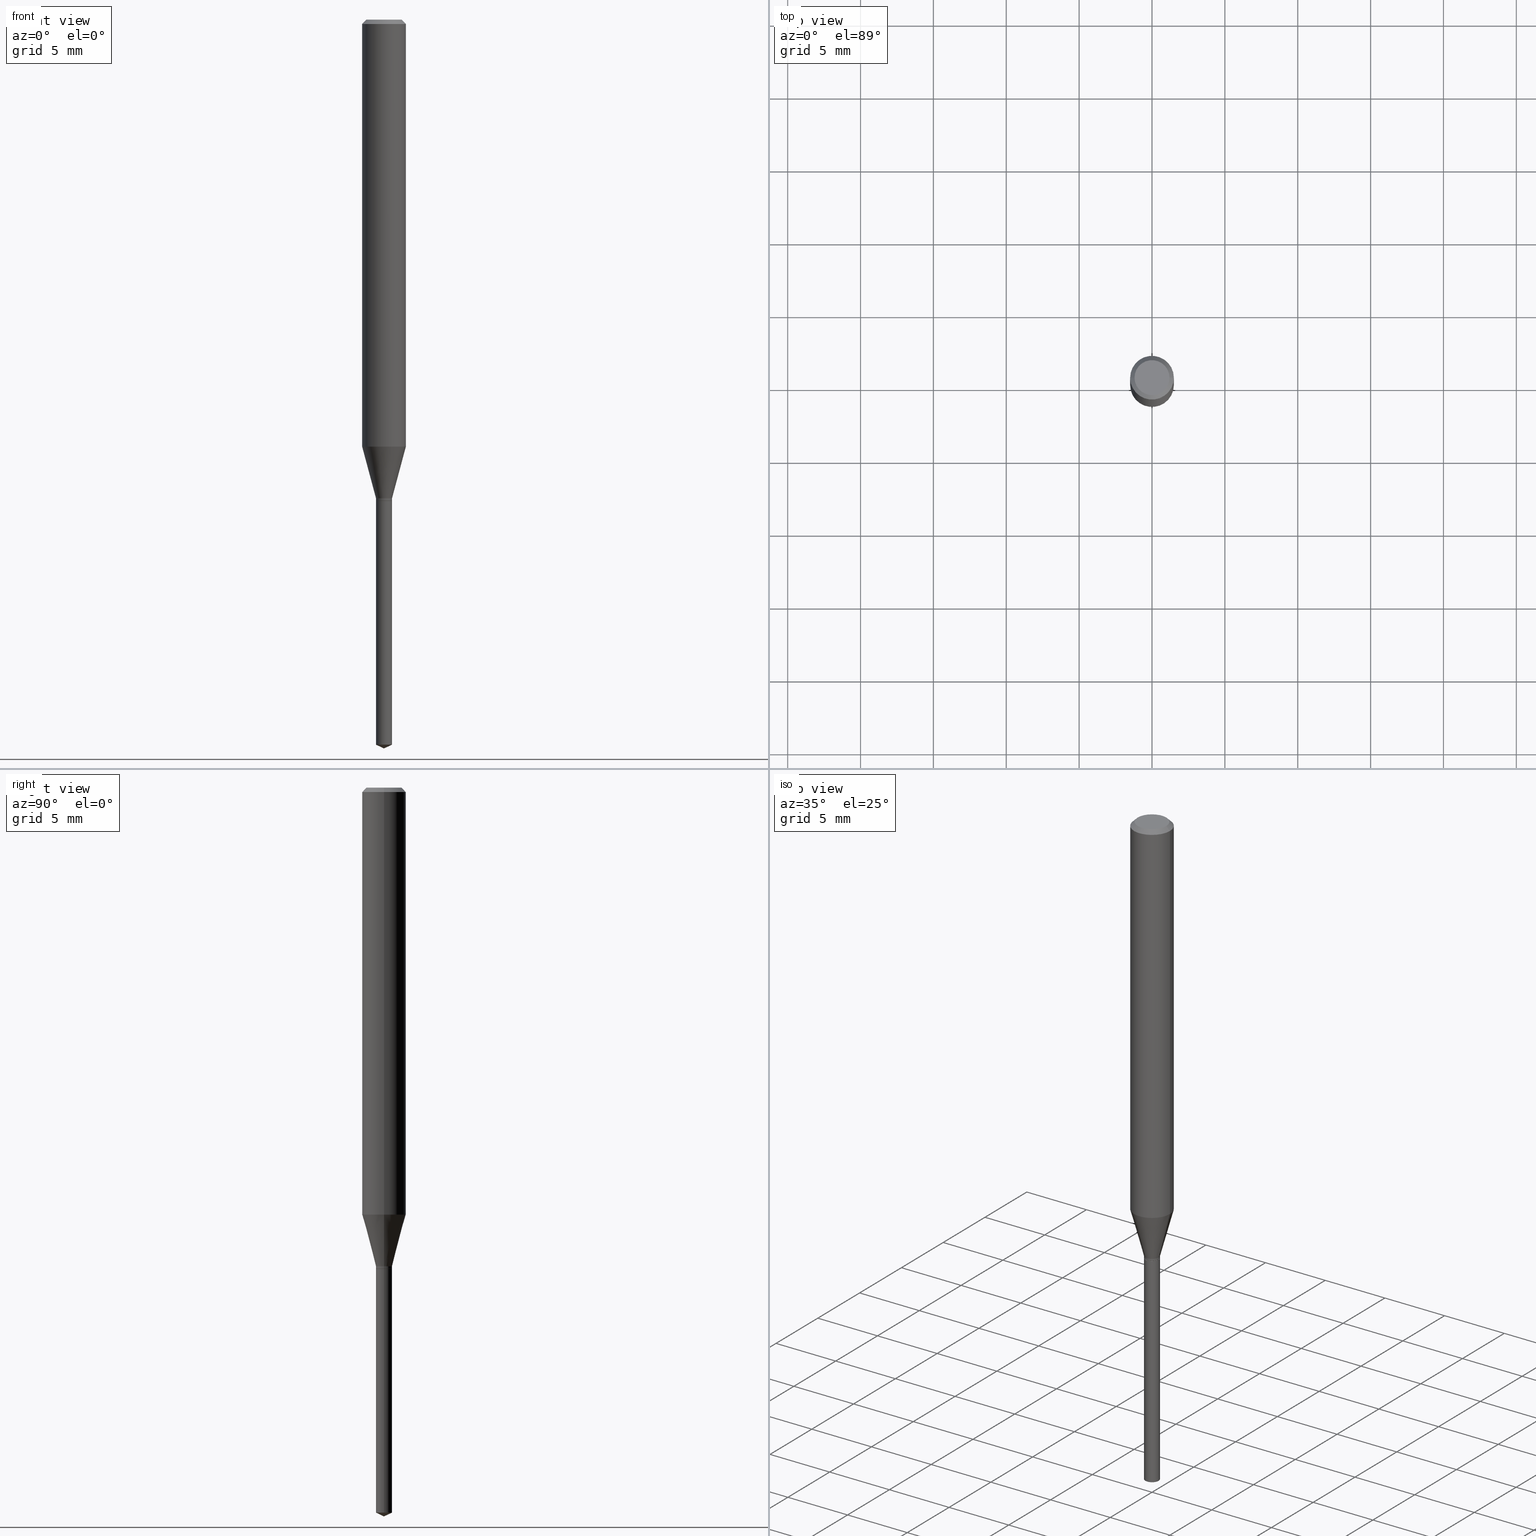
[diagram: canonical four-view strip — front | top / right | iso, engineering-drawing reading convention]
A machine part, canonical four-view strip (front | top / right | iso — engineering-drawing reading convention). The complete STEP part file that produces these views, byte-faithful:
ISO-10303-21;
HEADER;
FILE_DESCRIPTION (( 'STEP AP203' ),
    '1' );
FILE_NAME ('08334.STEP',
    '2024-04-24T14:24:11',
    ( '' ),
    ( '' ),
    'SwSTEP 2.0',
    'SolidWorks 2023',
    '' );
FILE_SCHEMA (( 'CONFIG_CONTROL_DESIGN' ));
ENDSEC;

DATA;
#1 = DIRECTION ( 'NONE',  ( -0.7071067811870244135, 7.493145998872077032E-15, 0.7071067811860706209 ) ) ;
#2 = ORIENTED_EDGE ( 'NONE', *, *, #338, .F. ) ;
#3 = FACE_OUTER_BOUND ( 'NONE', #89, .T. ) ;
#4 = CARTESIAN_POINT ( 'NONE',  ( -9.146317137672921654E-28, 1.305851684738629534E-13, 37.40107874015748024 ) ) ;
#5 = ORIENTED_EDGE ( 'NONE', *, *, #33, .F. ) ;
#6 = DIRECTION ( 'NONE',  ( -0.9063077870366528233, 7.915267918739013053E-15, 0.4226182617406928910 ) ) ;
#7 = CARTESIAN_POINT ( 'NONE',  ( 3.177153072995729878E-29, -4.536132555425015522E-15, -1.299200000000000133 ) ) ;
#8 = CIRCLE ( 'NONE', #375, 0.04724000000000000421 ) ;
#9 = AXIS2_PLACEMENT_3D ( 'NONE', #256, #409, #251 ) ;
#10 = VERTEX_POINT ( 'NONE', #36 ) ;
#11 = DIRECTION ( 'NONE',  ( 1.000000000000000000, -6.982962677686266711E-15, 4.876176775795935793E-29 ) ) ;
#12 = FACE_OUTER_BOUND ( 'NONE', #47, .T. ) ;
#13 = APPROVAL ( #482, 'UNSPECIFIED' ) ;
#14 = MANIFOLD_SOLID_BREP ( 'Body-Move/Copy2[2]', #170 ) ;
#15 = DIRECTION ( 'NONE',  ( 1.000000000000000000, -6.982962677686266711E-15, 4.876176775795935793E-29 ) ) ;
#16 = CARTESIAN_POINT ( 'NONE',  ( 3.178375807398821559E-29, -4.537878296094435448E-15, -1.299699999999999855 ) ) ;
#17 = VECTOR ( 'NONE', #112, 39.37007874015748143 ) ;
#18 = CC_DESIGN_APPROVAL ( #13, ( #103 ) ) ;
#19 = LINE ( 'NONE', #60, #262 ) ;
#20 = CYLINDRICAL_SURFACE ( 'NONE', #171, 0.02164999999999999564 ) ;
#21 = DIRECTION ( 'NONE',  ( -2.445468806185136597E-29, 3.491481338843145583E-15, 1.000000000000000000 ) ) ;
#22 = CARTESIAN_POINT ( 'NONE',  ( 3.162480260158618503E-29, -4.515183667391955113E-15, -1.293199999999999683 ) ) ;
#23 = CC_DESIGN_APPROVAL ( #62, ( #394 ) ) ;
#24 = DIRECTION ( 'NONE',  ( -2.445468806185136877E-29, 3.491481338843145188E-15, 1.000000000000000000 ) ) ;
#25 = ADVANCED_BREP_SHAPE_REPRESENTATION ( '08334', ( #166, #14, #195 ), #408 ) ;
#26 = DIRECTION ( 'NONE',  ( 2.438088387897960049E-29, -3.491481338843145188E-15, -1.000000000000000000 ) ) ;
#27 = PERSON_AND_ORGANIZATION_ROLE ( 'creator' ) ;
#28 = EDGE_CURVE ( 'NONE', #378, #441, #342, .T. ) ;
#29 = CYLINDRICAL_SURFACE ( 'NONE', #385, 0.05905000000000008159 ) ;
#30 = PERSON_AND_ORGANIZATION_ROLE ( 'design_owner' ) ;
#31 = CALENDAR_DATE ( 2024, 24, 4 ) ;
#32 = CIRCLE ( 'NONE', #283, 0.02165000000000002686 ) ;
#33 = EDGE_CURVE ( 'NONE', #350, #267, #410, .T. ) ;
#34 = ADVANCED_FACE ( 'NONE', ( #377 ), #229, .F. ) ;
#35 = COORDINATED_UNIVERSAL_TIME_OFFSET ( 5, 0, .BEHIND. ) ;
#36 = CARTESIAN_POINT ( 'NONE',  ( 0.02164999999999999564, -4.689059438066343179E-15, -1.299699999999999855 ) ) ;
#37 = ORIENTED_EDGE ( 'NONE', *, *, #225, .F. ) ;
#38 = DATE_AND_TIME ( #31, #271 ) ;
#39 = ORIENTED_EDGE ( 'NONE', *, *, #485, .T. ) ;
#40 = ORIENTED_EDGE ( 'NONE', *, *, #401, .T. ) ;
#41 = SHAPE_DEFINITION_REPRESENTATION ( #71, #25 ) ;
#42 = AXIS2_PLACEMENT_3D ( 'NONE', #217, #479, #243 ) ;
#43 = ORGANIZATION ( 'UNSPECIFIED', 'UNSPECIFIED', '' ) ;
#44 = CARTESIAN_POINT ( 'NONE',  ( 3.178375807398821559E-29, -4.537878296094435448E-15, -1.299699999999999855 ) ) ;
#45 = ORIENTED_EDGE ( 'NONE', *, *, #302, .F. ) ;
#46 = FACE_OUTER_BOUND ( 'NONE', #314, .T. ) ;
#47 = EDGE_LOOP ( 'NONE', ( #348, #237, #67, #232 ) ) ;
#48 = DIRECTION ( 'NONE',  ( -1.000000000000000000, 6.982962677686265922E-15, 0.000000000000000000 ) ) ;
#49 = ORIENTED_EDGE ( 'NONE', *, *, #124, .T. ) ;
#50 = CARTESIAN_POINT ( 'NONE',  ( 0.000000000000000000, 0.000000000000000000, 0.000000000000000000 ) ) ;
#51 = LINE ( 'NONE', #276, #106 ) ;
#52 = APPROVAL_PERSON_ORGANIZATION ( #72, #13, #152 ) ;
#53 = EDGE_CURVE ( 'NONE', #441, #311, #450, .T. ) ;
#54 = EDGE_CURVE ( 'NONE', #456, #164, #8, .T. ) ;
#55 = DIRECTION ( 'NONE',  ( -2.445468806185136597E-29, 3.491481338843145583E-15, 1.000000000000000000 ) ) ;
#56 = CARTESIAN_POINT ( 'NONE',  ( -0.04724000000000000421, 3.504923541997677355E-16, -3.380025165670481712E-19 ) ) ;
#57 = CARTESIAN_POINT ( 'NONE',  ( 3.178375807398821559E-29, -4.537878296094435448E-15, -1.299699999999999855 ) ) ;
#58 = DIRECTION ( 'NONE',  ( 1.000000000000000000, -6.982962677686259611E-15, 0.000000000000000000 ) ) ;
#59 = AXIS2_PLACEMENT_3D ( 'NONE', #181, #328, #102 ) ;
#60 = CARTESIAN_POINT ( 'NONE',  ( 0.05905000000000000526, -4.463468013801467941E-16, -0.01181000000000007565 ) ) ;
#61 = CARTESIAN_POINT ( 'NONE',  ( 2.821144902804128605E-29, -4.027847240332933093E-15, -1.153621299796923516 ) ) ;
#62 = APPROVAL ( #374, 'UNSPECIFIED' ) ;
#63 = DIRECTION ( 'NONE',  ( -2.445468806185136597E-29, 3.491481338843145583E-15, 1.000000000000000000 ) ) ;
#64 = CARTESIAN_POINT ( 'NONE',  ( 0.02165000000000002686, -1.511811419719078543E-16, 1.055692271959821365E-30 ) ) ;
#65 = CARTESIAN_POINT ( 'NONE',  ( 3.177153072995729878E-29, -4.536132555425015522E-15, -1.299200000000000133 ) ) ;
#66 = AXIS2_PLACEMENT_3D ( 'NONE', #312, #273, #15 ) ;
#67 = ORIENTED_EDGE ( 'NONE', *, *, #448, .T. ) ;
#68 = EDGE_CURVE ( 'NONE', #350, #311, #299, .T. ) ;
#69 = CARTESIAN_POINT ( 'NONE',  ( 0.04724000000000000421, -3.852183633974369838E-16, -3.380025165621689721E-19 ) ) ;
#70 = FACE_OUTER_BOUND ( 'NONE', #343, .T. ) ;
#71 = PRODUCT_DEFINITION_SHAPE ( 'NONE', 'NONE',  #103 ) ;
#72 = PERSON_AND_ORGANIZATION ( #467, #43 ) ;
#73 =( CONVERSION_BASED_UNIT ( 'INCH', #114 ) LENGTH_UNIT ( ) NAMED_UNIT ( #471 ) );
#74 = EDGE_CURVE ( 'NONE', #443, #265, #331, .T. ) ;
#75 = CARTESIAN_POINT ( 'NONE',  ( 0.000000000000000000, 0.000000000000000000, 0.000000000000000000 ) ) ;
#76 = AXIS2_PLACEMENT_3D ( 'NONE', #50, #90, #11 ) ;
#77 = DIRECTION ( 'NONE',  ( -1.000000000000000000, 6.982962677686265922E-15, -4.876176775795935793E-29 ) ) ;
#78 = APPROVAL_DATE_TIME ( #111, #62 ) ;
#79 = EDGE_LOOP ( 'NONE', ( #126, #117, #45 ) ) ;
#80 = ORIENTED_EDGE ( 'NONE', *, *, #279, .F. ) ;
#81 = DIRECTION ( 'NONE',  ( 1.000000000000000000, -6.982962677686260400E-15, 0.000000000000000000 ) ) ;
#82 = ORIENTED_EDGE ( 'NONE', *, *, #449, .T. ) ;
#83 = CIRCLE ( 'NONE', #99, 0.02165000000000002339 ) ;
#84 = CONICAL_SURFACE ( 'NONE', #258, 0.02114999999999999866, 0.7853981633981227395 ) ;
#85 = CARTESIAN_POINT ( 'NONE',  ( 3.162480260158618503E-29, -4.515183667391955113E-15, -1.293199999999999683 ) ) ;
#86 = ORIENTED_EDGE ( 'NONE', *, *, #304, .F. ) ;
#87 = DIRECTION ( 'NONE',  ( -2.445468806185136597E-29, 3.491481338843145583E-15, 1.000000000000000000 ) ) ;
#88 = DIRECTION ( 'NONE',  ( -2.445468806185136597E-29, 3.491481338843145583E-15, 1.000000000000000000 ) ) ;
#89 = EDGE_LOOP ( 'NONE', ( #417, #380, #151, #40 ) ) ;
#90 = DIRECTION ( 'NONE',  ( -2.445468806185136597E-29, 3.491481338843145583E-15, 1.000000000000000000 ) ) ;
#91 = ADVANCED_FACE ( 'NONE', ( #255 ), #281, .T. ) ;
#92 = DIRECTION ( 'NONE',  ( 1.000000000000000000, -6.982962677686271444E-15, 0.000000000000000000 ) ) ;
#93 = VECTOR ( 'NONE', #167, 39.37007874015748143 ) ;
#94 = AXIS2_PLACEMENT_3D ( 'NONE', #61, #472, #101 ) ;
#95 = DIRECTION ( 'NONE',  ( 1.000000000000000000, -6.982962677686266711E-15, 4.876185090822587894E-29 ) ) ;
#96 = FACE_OUTER_BOUND ( 'NONE', #353, .T. ) ;
#97 = CARTESIAN_POINT ( 'NONE',  ( -0.02165000000000002686, -4.371825609116423609E-15, -1.299200000000000133 ) ) ;
#98 = CARTESIAN_POINT ( 'NONE',  ( 0.05905000000000008159, -4.123439461173746736E-16, 2.879382386107504424E-30 ) ) ;
#99 = AXIS2_PLACEMENT_3D ( 'NONE', #85, #125, #323 ) ;
#100 = CIRCLE ( 'NONE', #222, 0.02164999999999999564 ) ;
#101 = DIRECTION ( 'NONE',  ( 1.000000000000000000, -6.982962677686271444E-15, 0.000000000000000000 ) ) ;
#102 = DIRECTION ( 'NONE',  ( 1.000000000000000000, -6.982962677686260400E-15, 0.000000000000000000 ) ) ;
#103 = PRODUCT_DEFINITION ( 'UNKNOWN', '', #394, #321 ) ;
#104 = CARTESIAN_POINT ( 'NONE',  ( 0.02114999999999999866, -4.685567956727499383E-15, -1.299699999999999633 ) ) ;
#105 = DIRECTION ( 'NONE',  ( -2.445468806185136597E-29, 3.491481338843145583E-15, 1.000000000000000000 ) ) ;
#106 = VECTOR ( 'NONE', #204, 39.37007874015747433 ) ;
#107 = DIRECTION ( 'NONE',  ( 1.000000000000000000, -6.982962677686260400E-15, 0.000000000000000000 ) ) ;
#108 = AXIS2_PLACEMENT_3D ( 'NONE', #465, #431, #200 ) ;
#109 = EDGE_CURVE ( 'NONE', #451, #230, #310, .T. ) ;
#110 = PERSON_AND_ORGANIZATION ( #467, #43 ) ;
#111 = DATE_AND_TIME ( #228, #242 ) ;
#112 = DIRECTION ( 'NONE',  ( 0.7071067811870244135, -2.468850131087252128E-15, 0.7071067811860706209 ) ) ;
#113 = ORIENTED_EDGE ( 'NONE', *, *, #53, .F. ) ;
#114 = LENGTH_MEASURE_WITH_UNIT ( LENGTH_MEASURE( 0.02539999999999999897 ), #190 );
#115 = ORIENTED_EDGE ( 'NONE', *, *, #302, .T. ) ;
#116 = EDGE_CURVE ( 'NONE', #451, #454, #209, .T. ) ;
#117 = ORIENTED_EDGE ( 'NONE', *, *, #416, .T. ) ;
#118 = ORIENTED_EDGE ( 'NONE', *, *, #212, .T. ) ;
#119 = ORIENTED_EDGE ( 'NONE', *, *, #211, .T. ) ;
#120 = CARTESIAN_POINT ( 'NONE',  ( 0.02114999999999999866, -4.685567956727499383E-15, -1.299699999999999633 ) ) ;
#121 = AXIS2_PLACEMENT_3D ( 'NONE', #238, #396, #278 ) ;
#122 = ORIENTED_EDGE ( 'NONE', *, *, #116, .F. ) ;
#123 = FACE_OUTER_BOUND ( 'NONE', #477, .T. ) ;
#124 = EDGE_CURVE ( 'NONE', #441, #265, #145, .T. ) ;
#125 = DIRECTION ( 'NONE',  ( -2.445468806185136597E-29, 3.491481338843145583E-15, 1.000000000000000000 ) ) ;
#126 = ORIENTED_EDGE ( 'NONE', *, *, #173, .F. ) ;
#127 = FACE_OUTER_BOUND ( 'NONE', #381, .T. ) ;
#128 = PLANE ( 'NONE',  #108 ) ;
#129 = AXIS2_PLACEMENT_3D ( 'NONE', #432, #169, #280 ) ;
#130 = CARTESIAN_POINT ( 'NONE',  ( -0.05905000000000000526, 3.711095515056362547E-16, -0.01181000000000007565 ) ) ;
#131 = AXIS2_PLACEMENT_3D ( 'NONE', #134, #288, #286 ) ;
#132 = AXIS2_PLACEMENT_3D ( 'NONE', #360, #322, #363 ) ;
#133 = CARTESIAN_POINT ( 'NONE',  ( 2.888098660104664642E-31, -4.123439461173780879E-17, -0.01181000000000007565 ) ) ;
#134 = CARTESIAN_POINT ( 'NONE',  ( 3.178375807398821559E-29, -4.537878296094435448E-15, -1.299699999999999855 ) ) ;
#135 = FACE_OUTER_BOUND ( 'NONE', #158, .T. ) ;
#136 = PLANE ( 'NONE',  #138 ) ;
#137 = AXIS2_PLACEMENT_3D ( 'NONE', #44, #26, #77 ) ;
#138 = AXIS2_PLACEMENT_3D ( 'NONE', #468, #434, #247 ) ;
#139 = EDGE_CURVE ( 'NONE', #370, #267, #473, .T. ) ;
#140 = ADVANCED_FACE ( 'NONE', ( #12 ), #458, .T. ) ;
#141 = EDGE_LOOP ( 'NONE', ( #418, #192, #122 ) ) ;
#142 = DIRECTION ( 'NONE',  ( 1.000000000000000000, -6.982962677686269866E-15, 0.000000000000000000 ) ) ;
#143 = ORIENTED_EDGE ( 'NONE', *, *, #74, .F. ) ;
#144 = PERSON_AND_ORGANIZATION ( #467, #43 ) ;
#145 = CIRCLE ( 'NONE', #324, 0.02165000000000002686 ) ;
#146 = CIRCLE ( 'NONE', #9, 0.02114999999999999866 ) ;
#147 = CALENDAR_DATE ( 2024, 24, 4 ) ;
#148 = APPROVAL_ROLE ( '' ) ;
#149 = PERSON_AND_ORGANIZATION ( #467, #43 ) ;
#150 = CARTESIAN_POINT ( 'NONE',  ( -0.02114999999999999866, -4.387598507481173455E-15, -1.299699999999999633 ) ) ;
#151 = ORIENTED_EDGE ( 'NONE', *, *, #174, .T. ) ;
#152 = APPROVAL_ROLE ( '' ) ;
#153 = CONICAL_SURFACE ( 'NONE', #129, 84.42940631927551465, 1.134464013796321336 ) ;
#154 = AXIS2_PLACEMENT_3D ( 'NONE', #272, #87, #236 ) ;
#155 = ADVANCED_FACE ( 'NONE', ( #127 ), #352, .T. ) ;
#156 = VERTEX_POINT ( 'NONE', #201 ) ;
#157 = EDGE_LOOP ( 'NONE', ( #82, #39 ) ) ;
#158 = EDGE_LOOP ( 'NONE', ( #143, #391, #388, #199 ) ) ;
#159 = ORIENTED_EDGE ( 'NONE', *, *, #139, .T. ) ;
#160 = ORIENTED_EDGE ( 'NONE', *, *, #53, .T. ) ;
#161 = FACE_OUTER_BOUND ( 'NONE', #202, .T. ) ;
#162 = AXIS2_PLACEMENT_3D ( 'NONE', #214, #178, #332 ) ;
#163 = DIRECTION ( 'NONE',  ( -2.445468806185136597E-29, 3.491481338843145583E-15, 1.000000000000000000 ) ) ;
#164 = VERTEX_POINT ( 'NONE', #56 ) ;
#165 = CARTESIAN_POINT ( 'NONE',  ( -0.02114999999999999866, -4.384949280307063043E-15, -1.299699999999999633 ) ) ;
#166 = MANIFOLD_SOLID_BREP ( 'Body-Move/Copy2[1]', #221 ) ;
#167 = DIRECTION ( 'NONE',  ( -0.7071067811865454633, 2.468850131082235367E-15, -0.7071067811865495711 ) ) ;
#168 = DIRECTION ( 'NONE',  ( -1.000000000000000000, 6.982962677686265922E-15, 0.000000000000000000 ) ) ;
#169 = DIRECTION ( 'NONE',  ( -2.445468806185136597E-29, 3.491481338843145583E-15, 1.000000000000000000 ) ) ;
#170 = CLOSED_SHELL ( 'NONE', ( #433, #140, #244, #91, #155, #438, #261, #356, #424, #357, #470, #295 ) ) ;
#171 = AXIS2_PLACEMENT_3D ( 'NONE', #16, #63, #327 ) ;
#172 = CARTESIAN_POINT ( 'NONE',  ( 4.815128079378533515E-29, -6.874726756182153211E-15, -1.968999999999999861 ) ) ;
#173 = EDGE_CURVE ( 'NONE', #489, #454, #425, .T. ) ;
#174 = EDGE_CURVE ( 'NONE', #164, #419, #390, .T. ) ;
#175 = FACE_OUTER_BOUND ( 'NONE', #488, .T. ) ;
#176 = APPROVAL_PERSON_ORGANIZATION ( #334, #62, #148 ) ;
#177 = DIRECTION ( 'NONE',  ( -2.445468806185136597E-29, 3.491481338843145583E-15, 1.000000000000000000 ) ) ;
#178 = DIRECTION ( 'NONE',  ( -2.445468806185136597E-29, 3.491481338843145583E-15, 1.000000000000000000 ) ) ;
#179 = CARTESIAN_POINT ( 'NONE',  ( 8.265746106709734507E-48, -1.180129479067563789E-33, -3.380025165646692144E-19 ) ) ;
#180 = DATE_AND_TIME ( #452, #325 ) ;
#181 = CARTESIAN_POINT ( 'NONE',  ( 3.162480260158618503E-29, -4.515183667391955113E-15, -1.293199999999999683 ) ) ;
#182 =( NAMED_UNIT ( * ) SI_UNIT ( $, .STERADIAN. ) SOLID_ANGLE_UNIT ( ) );
#183 = AXIS2_PLACEMENT_3D ( 'NONE', #344, #305, #107 ) ;
#184 = VECTOR ( 'NONE', #404, 39.37007874015748143 ) ;
#185 = APPROVAL_PERSON_ORGANIZATION ( #413, #340, #447 ) ;
#186 = DATE_TIME_ROLE ( 'classification_date' ) ;
#187 =( NAMED_UNIT ( * ) PLANE_ANGLE_UNIT ( ) SI_UNIT ( $, .RADIAN. ) );
#188 = ORIENTED_EDGE ( 'NONE', *, *, #33, .T. ) ;
#189 = EDGE_LOOP ( 'NONE', ( #118, #188, #235, #37 ) ) ;
#190 =( LENGTH_UNIT ( ) NAMED_UNIT ( * ) SI_UNIT ( $, .METRE. ) );
#191 = ADVANCED_FACE ( 'NONE', ( #239 ), #153, .T. ) ;
#192 = ORIENTED_EDGE ( 'NONE', *, *, #173, .T. ) ;
#193 = EDGE_LOOP ( 'NONE', ( #196, #426, #461, #308 ) ) ;
#194 = DATE_AND_TIME ( #414, #460 ) ;
#195 = AXIS2_PLACEMENT_3D ( 'NONE', #75, #336, #339 ) ;
#196 = ORIENTED_EDGE ( 'NONE', *, *, #109, .F. ) ;
#197 = ORIENTED_EDGE ( 'NONE', *, *, #279, .T. ) ;
#198 = CYLINDRICAL_SURFACE ( 'NONE', #362, 0.05905000000000008159 ) ;
#199 = ORIENTED_EDGE ( 'NONE', *, *, #319, .F. ) ;
#200 = DIRECTION ( 'NONE',  ( -1.000000000000000000, 6.982962677686265922E-15, -4.876176775795935793E-29 ) ) ;
#201 = CARTESIAN_POINT ( 'NONE',  ( 0.05905000000000000526, -4.535783407291119586E-16, -0.01181000000000007565 ) ) ;
#202 = EDGE_LOOP ( 'NONE', ( #455, #277 ) ) ;
#203 = VECTOR ( 'NONE', #405, 39.37007874015748143 ) ;
#204 = DIRECTION ( 'NONE',  ( 0.2588190451025213501, 1.565188264969621968E-15, 0.9659258262890682012 ) ) ;
#205 = DIRECTION ( 'NONE',  ( 1.000000000000000000, -6.982962677686268288E-15, 0.000000000000000000 ) ) ;
#206 = DIRECTION ( 'NONE',  ( 1.000000000000000000, -6.982962677686259611E-15, 0.000000000000000000 ) ) ;
#207 = DIRECTION ( 'NONE',  ( -2.445468806185136597E-29, 3.491481338843145583E-15, 1.000000000000000000 ) ) ;
#208 = ADVANCED_FACE ( 'NONE', ( #393 ), #215, .T. ) ;
#209 = CIRCLE ( 'NONE', #42, 0.02164999999999999564 ) ;
#210 = CIRCLE ( 'NONE', #358, 0.05905000000000000526 ) ;
#211 = EDGE_CURVE ( 'NONE', #267, #419, #387, .T. ) ;
#212 = EDGE_CURVE ( 'NONE', #311, #350, #83, .T. ) ;
#213 = ORIENTED_EDGE ( 'NONE', *, *, #68, .T. ) ;
#214 = CARTESIAN_POINT ( 'NONE',  ( 3.178375807398820998E-29, -4.537878296094433870E-15, -1.299699999999999633 ) ) ;
#215 = CONICAL_SURFACE ( 'NONE', #407, 84.42940631927551465, 1.134464013796321336 ) ;
#216 = AXIS2_PLACEMENT_3D ( 'NONE', #57, #207, #389 ) ;
#217 = CARTESIAN_POINT ( 'NONE',  ( 4.790439700363498334E-29, -6.839478294047094651E-15, -1.958904439200944481 ) ) ;
#218 = DIRECTION ( 'NONE',  ( 1.000000000000000000, -6.982962677686267499E-15, 4.876176775795936353E-29 ) ) ;
#219 = DATE_TIME_ROLE ( 'creation_date' ) ;
#220 = COORDINATED_UNIVERSAL_TIME_OFFSET ( 5, 0, .BEHIND. ) ;
#221 = CLOSED_SHELL ( 'NONE', ( #466, #191, #208, #402, #34 ) ) ;
#222 = AXIS2_PLACEMENT_3D ( 'NONE', #254, #105, #142 ) ;
#223 = APPROVAL_STATUS ( 'not_yet_approved' ) ;
#224 = CARTESIAN_POINT ( 'NONE',  ( -0.02165000000000002339, -4.361351165099893010E-15, -1.293199999999999683 ) ) ;
#225 = EDGE_CURVE ( 'NONE', #311, #370, #51, .T. ) ;
#226 = EDGE_CURVE ( 'NONE', #164, #456, #384, .T. ) ;
#227 = ORIENTED_EDGE ( 'NONE', *, *, #437, .F. ) ;
#228 = CALENDAR_DATE ( 2024, 24, 4 ) ;
#229 = PLANE ( 'NONE',  #137 ) ;
#230 = VERTEX_POINT ( 'NONE', #397 ) ;
#231 = ORIENTED_EDGE ( 'NONE', *, *, #449, .F. ) ;
#232 = ORIENTED_EDGE ( 'NONE', *, *, #174, .F. ) ;
#233 = CONICAL_SURFACE ( 'NONE', #121, 0.02114999999999999866, 0.7853981633981227395 ) ;
#234 = DIRECTION ( 'NONE',  ( -2.445468806185136597E-29, 3.491481338843145583E-15, 1.000000000000000000 ) ) ;
#235 = ORIENTED_EDGE ( 'NONE', *, *, #139, .F. ) ;
#236 = DIRECTION ( 'NONE',  ( 1.000000000000000000, -6.982962677686268288E-15, 0.000000000000000000 ) ) ;
#237 = ORIENTED_EDGE ( 'NONE', *, *, #483, .T. ) ;
#238 = CARTESIAN_POINT ( 'NONE',  ( 3.178375807398820998E-29, -4.537878296094433870E-15, -1.299699999999999633 ) ) ;
#239 = FACE_OUTER_BOUND ( 'NONE', #79, .T. ) ;
#240 = AXIS2_PLACEMENT_3D ( 'NONE', #22, #177, #81 ) ;
#241 = CARTESIAN_POINT ( 'NONE',  ( 0.02165000000000002686, -4.687313697396923253E-15, -1.299200000000000133 ) ) ;
#242 = LOCAL_TIME ( 10, 24, 11.00000000000000000, #412 ) ;
#243 = DIRECTION ( 'NONE',  ( 1.000000000000000000, -6.982962677686269866E-15, 0.000000000000000000 ) ) ;
#244 = ADVANCED_FACE ( 'NONE', ( #46 ), #198, .T. ) ;
#245 = FACE_OUTER_BOUND ( 'NONE', #264, .T. ) ;
#246 = DIRECTION ( 'NONE',  ( -2.445468806185136597E-29, 3.491481338843145583E-15, 1.000000000000000000 ) ) ;
#247 = DIRECTION ( 'NONE',  ( 1.000000000000000000, -6.982962677686265922E-15, 4.876176775795935793E-29 ) ) ;
#248 = DIRECTION ( 'NONE',  ( 1.000000000000000000, -6.982962677686267499E-15, 4.876176775795936353E-29 ) ) ;
#249 = DIRECTION ( 'NONE',  ( 0.7071067811865454633, -7.319954787623248157E-15, -0.7071067811865495711 ) ) ;
#250 = VECTOR ( 'NONE', #361, 39.37007874015748854 ) ;
#251 = DIRECTION ( 'NONE',  ( 1.000000000000000000, -6.982962677686289588E-15, 0.000000000000000000 ) ) ;
#252 = CIRCLE ( 'NONE', #131, 0.02164999999999999564 ) ;
#253 = CC_DESIGN_DATE_AND_TIME_ASSIGNMENT ( #38, #186, ( #445 ) ) ;
#254 = CARTESIAN_POINT ( 'NONE',  ( 4.790439700363498334E-29, -6.839478294047094651E-15, -1.958904439200944481 ) ) ;
#255 = FACE_OUTER_BOUND ( 'NONE', #189, .T. ) ;
#256 = CARTESIAN_POINT ( 'NONE',  ( 3.178375807398820998E-29, -4.537878296094433870E-15, -1.299699999999999633 ) ) ;
#257 = VECTOR ( 'NONE', #463, 39.37007874015748143 ) ;
#258 = AXIS2_PLACEMENT_3D ( 'NONE', #287, #436, #442 ) ;
#259 = CARTESIAN_POINT ( 'NONE',  ( -0.02164999999999999564, -4.384045793802373345E-15, -1.299699999999999855 ) ) ;
#260 = EDGE_CURVE ( 'NONE', #265, #350, #469, .T. ) ;
#261 = ADVANCED_FACE ( 'NONE', ( #175 ), #337, .T. ) ;
#262 = VECTOR ( 'NONE', #249, 39.37007874015748143 ) ;
#263 = COORDINATED_UNIVERSAL_TIME_OFFSET ( 5, 0, .BEHIND. ) ;
#264 = EDGE_LOOP ( 'NONE', ( #422, #464, #490, #292 ) ) ;
#265 = VERTEX_POINT ( 'NONE', #97 ) ;
#266 = ORIENTED_EDGE ( 'NONE', *, *, #260, .F. ) ;
#267 = VERTEX_POINT ( 'NONE', #439 ) ;
#268 = CARTESIAN_POINT ( 'NONE',  ( 0.02164999999999999564, -4.689059438066343179E-15, -1.299699999999999855 ) ) ;
#269 = DIRECTION ( 'NONE',  ( -0.2588190451025213501, 5.211531920934551042E-15, 0.9659258262890682012 ) ) ;
#270 = ORIENTED_EDGE ( 'NONE', *, *, #260, .T. ) ;
#271 = LOCAL_TIME ( 10, 24, 11.00000000000000000, #220 ) ;
#272 = CARTESIAN_POINT ( 'NONE',  ( 2.888098660104664642E-31, -4.123439461173780879E-17, -0.01181000000000007565 ) ) ;
#273 = DIRECTION ( 'NONE',  ( -2.445468806185136597E-29, 3.491481338843145583E-15, 1.000000000000000000 ) ) ;
#274 = ORIENTED_EDGE ( 'NONE', *, *, #448, .F. ) ;
#275 = CARTESIAN_POINT ( 'NONE',  ( 2.888098660104664642E-31, -4.123439461173780879E-17, -0.01181000000000007565 ) ) ;
#276 = CARTESIAN_POINT ( 'NONE',  ( 0.02165000000000002339, -4.666364809363862844E-15, -1.293199999999999683 ) ) ;
#277 = ORIENTED_EDGE ( 'NONE', *, *, #54, .T. ) ;
#278 = DIRECTION ( 'NONE',  ( 1.000000000000000000, -6.982962677686289588E-15, 0.000000000000000000 ) ) ;
#279 = EDGE_CURVE ( 'NONE', #267, #370, #306, .T. ) ;
#280 = DIRECTION ( 'NONE',  ( 1.000000000000000000, -6.982962677686267499E-15, 0.000000000000000000 ) ) ;
#281 = CONICAL_SURFACE ( 'NONE', #183, 0.02165000000000002339, 0.2617993877991500740 ) ;
#282 = CARTESIAN_POINT ( 'NONE',  ( 0.05905000000000015098, -4.440191186450307224E-15, -1.153621299796923516 ) ) ;
#283 = AXIS2_PLACEMENT_3D ( 'NONE', #65, #372, #58 ) ;
#284 = FACE_OUTER_BOUND ( 'NONE', #453, .T. ) ;
#285 = CARTESIAN_POINT ( 'NONE',  ( 0.000000000000000000, 0.000000000000000000, 0.000000000000000000 ) ) ;
#286 = DIRECTION ( 'NONE',  ( 1.000000000000000000, -6.982962677686269866E-15, 0.000000000000000000 ) ) ;
#287 = CARTESIAN_POINT ( 'NONE',  ( 3.178375807398820998E-29, -4.537878296094433870E-15, -1.299699999999999633 ) ) ;
#288 = DIRECTION ( 'NONE',  ( -2.445468806185136597E-29, 3.491481338843145583E-15, 1.000000000000000000 ) ) ;
#289 = CC_DESIGN_PERSON_AND_ORGANIZATION_ASSIGNMENT ( #144, #373, ( #445 ) ) ;
#290 = AXIS2_PLACEMENT_3D ( 'NONE', #133, #428, #48 ) ;
#291 = CONICAL_SURFACE ( 'NONE', #421, 0.05905000000000000526, 0.7853981633974453924 ) ;
#292 = ORIENTED_EDGE ( 'NONE', *, *, #28, .F. ) ;
#293 = CARTESIAN_POINT ( 'NONE',  ( -0.02165000000000002686, 1.538325022920618811E-16, -1.064949447040188428E-30 ) ) ;
#294 = PRODUCT ( '08334', '08334', '', ( #341 ) ) ;
#295 = ADVANCED_FACE ( 'NONE', ( #135 ), #84, .T. ) ;
#296 = APPLICATION_CONTEXT ( 'configuration controlled 3d designs of mechanical parts and assemblies' ) ;
#297 = ORIENTED_EDGE ( 'NONE', *, *, #319, .T. ) ;
#298 = PERSON_AND_ORGANIZATION ( #467, #43 ) ;
#299 = CIRCLE ( 'NONE', #240, 0.02165000000000002339 ) ;
#300 = CC_DESIGN_DATE_AND_TIME_ASSIGNMENT ( #180, #219, ( #103 ) ) ;
#301 = COORDINATED_UNIVERSAL_TIME_OFFSET ( 5, 0, .BEHIND. ) ;
#302 = EDGE_CURVE ( 'NONE', #454, #451, #100, .T. ) ;
#303 = PERSON_AND_ORGANIZATION_ROLE ( 'creator' ) ;
#304 = EDGE_CURVE ( 'NONE', #370, #156, #398, .T. ) ;
#305 = DIRECTION ( 'NONE',  ( -2.445468806185136597E-29, 3.491481338843145583E-15, 1.000000000000000000 ) ) ;
#306 = CIRCLE ( 'NONE', #94, 0.05905000000000015098 ) ;
#307 = ORIENTED_EDGE ( 'NONE', *, *, #304, .T. ) ;
#308 = ORIENTED_EDGE ( 'NONE', *, *, #485, .F. ) ;
#309 = ORIENTED_EDGE ( 'NONE', *, *, #401, .F. ) ;
#310 = LINE ( 'NONE', #259, #203 ) ;
#311 = VERTEX_POINT ( 'NONE', #368 ) ;
#312 = CARTESIAN_POINT ( 'NONE',  ( 0.000000000000000000, 0.000000000000000000, 0.000000000000000000 ) ) ;
#313 = VECTOR ( 'NONE', #269, 39.37007874015747433 ) ;
#314 = EDGE_LOOP ( 'NONE', ( #159, #119, #274, #86 ) ) ;
#315 = DIRECTION ( 'NONE',  ( 1.000000000000000000, -6.982962677686267499E-15, 0.000000000000000000 ) ) ;
#316 = ORIENTED_EDGE ( 'NONE', *, *, #109, .T. ) ;
#317 = EDGE_CURVE ( 'NONE', #378, #443, #146, .T. ) ;
#318 = DIRECTION ( 'NONE',  ( -2.445468806185136877E-29, 3.491481338843145188E-15, 1.000000000000000000 ) ) ;
#319 = EDGE_CURVE ( 'NONE', #265, #441, #32, .T. ) ;
#320 = CARTESIAN_POINT ( 'NONE',  ( 8.265746106709734507E-48, -1.180129479067563789E-33, -3.380025165646692144E-19 ) ) ;
#321 = DESIGN_CONTEXT ( 'detailed design', #423, 'design' ) ;
#322 = DIRECTION ( 'NONE',  ( -2.445468806185136597E-29, 3.491481338843145583E-15, 1.000000000000000000 ) ) ;
#323 = DIRECTION ( 'NONE',  ( 1.000000000000000000, -6.982962677686260400E-15, 0.000000000000000000 ) ) ;
#324 = AXIS2_PLACEMENT_3D ( 'NONE', #7, #163, #206 ) ;
#325 = LOCAL_TIME ( 10, 24, 11.00000000000000000, #301 ) ;
#326 = CARTESIAN_POINT ( 'NONE',  ( 4.815128079378533515E-29, -6.874726756182153211E-15, -1.968999999999999861 ) ) ;
#327 = DIRECTION ( 'NONE',  ( 1.000000000000000000, -6.982962677686269866E-15, 0.000000000000000000 ) ) ;
#328 = DIRECTION ( 'NONE',  ( -2.445468806185136597E-29, 3.491481338843145583E-15, 1.000000000000000000 ) ) ;
#329 = LOCAL_TIME ( 10, 24, 11.00000000000000000, #35 ) ;
#330 = CC_DESIGN_APPROVAL ( #340, ( #445 ) ) ;
#331 = LINE ( 'NONE', #150, #367 ) ;
#332 = DIRECTION ( 'NONE',  ( 1.000000000000000000, -6.982962677686289588E-15, 0.000000000000000000 ) ) ;
#333 = ORIENTED_EDGE ( 'NONE', *, *, #211, .F. ) ;
#334 = PERSON_AND_ORGANIZATION ( #467, #43 ) ;
#335 = PRODUCT_RELATED_PRODUCT_CATEGORY ( 'detail', '', ( #294 ) ) ;
#336 = DIRECTION ( 'NONE',  ( 0.000000000000000000, 0.000000000000000000, 1.000000000000000000 ) ) ;
#337 = CONICAL_SURFACE ( 'NONE', #59, 0.02165000000000002339, 0.2617993877991500740 ) ;
#338 = EDGE_CURVE ( 'NONE', #443, #378, #346, .T. ) ;
#339 = DIRECTION ( 'NONE',  ( 1.000000000000000000, 0.000000000000000000, 0.000000000000000000 ) ) ;
#340 = APPROVAL ( #223, 'UNSPECIFIED' ) ;
#341 = MECHANICAL_CONTEXT ( 'NONE', #296, 'mechanical' ) ;
#342 = LINE ( 'NONE', #104, #17 ) ;
#343 = EDGE_LOOP ( 'NONE', ( #333, #197, #307, #309 ) ) ;
#344 = CARTESIAN_POINT ( 'NONE',  ( 3.162480260158618503E-29, -4.515183667391955113E-15, -1.293199999999999683 ) ) ;
#345 = AXIS2_PLACEMENT_3D ( 'NONE', #355, #246, #92 ) ;
#346 = CIRCLE ( 'NONE', #162, 0.02114999999999999866 ) ;
#347 = VECTOR ( 'NONE', #24, 39.37007874015748143 ) ;
#348 = ORIENTED_EDGE ( 'NONE', *, *, #54, .F. ) ;
#349 = DIRECTION ( 'NONE',  ( 1.000000000000000000, -6.982962677686266711E-15, 4.876185090822587894E-29 ) ) ;
#350 = VERTEX_POINT ( 'NONE', #478 ) ;
#351 = CYLINDRICAL_SURFACE ( 'NONE', #216, 0.02164999999999999564 ) ;
#352 = CYLINDRICAL_SURFACE ( 'NONE', #66, 0.02165000000000002686 ) ;
#353 = EDGE_LOOP ( 'NONE', ( #383, #2 ) ) ;
#354 = LINE ( 'NONE', #392, #474 ) ;
#355 = CARTESIAN_POINT ( 'NONE',  ( 2.821144902804128605E-29, -4.027847240332933093E-15, -1.153621299796923516 ) ) ;
#356 = ADVANCED_FACE ( 'NONE', ( #70 ), #29, .T. ) ;
#357 = ADVANCED_FACE ( 'NONE', ( #161 ), #128, .F. ) ;
#358 = AXIS2_PLACEMENT_3D ( 'NONE', #430, #55, #205 ) ;
#359 = CARTESIAN_POINT ( 'NONE',  ( -0.05905000000000000526, -1.614965332005994340E-15, -0.01181000000000007565 ) ) ;
#360 = CARTESIAN_POINT ( 'NONE',  ( 3.178375807398821559E-29, -4.537878296094435448E-15, -1.299699999999999855 ) ) ;
#361 = DIRECTION ( 'NONE',  ( 0.9063077870366528233, -4.853149677051422177E-15, 0.4226182617406928910 ) ) ;
#362 = AXIS2_PLACEMENT_3D ( 'NONE', #364, #21, #218 ) ;
#363 = DIRECTION ( 'NONE',  ( 1.000000000000000000, -6.982962677686269866E-15, 0.000000000000000000 ) ) ;
#364 = CARTESIAN_POINT ( 'NONE',  ( 0.000000000000000000, 0.000000000000000000, 0.000000000000000000 ) ) ;
#365 = DIRECTION ( 'NONE',  ( -2.445468806185136877E-29, 3.491481338843145188E-15, 1.000000000000000000 ) ) ;
#366 = CC_DESIGN_PERSON_AND_ORGANIZATION_ASSIGNMENT ( #298, #30, ( #294 ) ) ;
#367 = VECTOR ( 'NONE', #1, 39.37007874015748143 ) ;
#368 = CARTESIAN_POINT ( 'NONE',  ( 0.02165000000000002339, -4.666364809363862844E-15, -1.293199999999999683 ) ) ;
#369 = CIRCLE ( 'NONE', #154, 0.05905000000000000526 ) ;
#370 = VERTEX_POINT ( 'NONE', #282 ) ;
#371 = PERSON_AND_ORGANIZATION ( #467, #43 ) ;
#372 = DIRECTION ( 'NONE',  ( -2.445468806185136597E-29, 3.491481338843145583E-15, 1.000000000000000000 ) ) ;
#373 = PERSON_AND_ORGANIZATION_ROLE ( 'classification_officer' ) ;
#374 = APPROVAL_STATUS ( 'not_yet_approved' ) ;
#375 = AXIS2_PLACEMENT_3D ( 'NONE', #179, #487, #349 ) ;
#376 = CC_DESIGN_PERSON_AND_ORGANIZATION_ASSIGNMENT ( #110, #379, ( #394 ) ) ;
#377 = FACE_OUTER_BOUND ( 'NONE', #157, .T. ) ;
#378 = VERTEX_POINT ( 'NONE', #120 ) ;
#379 = PERSON_AND_ORGANIZATION_ROLE ( 'design_supplier' ) ;
#380 = ORIENTED_EDGE ( 'NONE', *, *, #226, .F. ) ;
#381 = EDGE_LOOP ( 'NONE', ( #49, #270, #415, #113 ) ) ;
#382 = APPROVAL_DATE_TIME ( #194, #340 ) ;
#383 = ORIENTED_EDGE ( 'NONE', *, *, #317, .F. ) ;
#384 = CIRCLE ( 'NONE', #444, 0.04724000000000000421 ) ;
#385 = AXIS2_PLACEMENT_3D ( 'NONE', #285, #435, #248 ) ;
#386 = ORIENTED_EDGE ( 'NONE', *, *, #225, .T. ) ;
#387 = LINE ( 'NONE', #420, #257 ) ;
#388 = ORIENTED_EDGE ( 'NONE', *, *, #28, .T. ) ;
#389 = DIRECTION ( 'NONE',  ( 1.000000000000000000, -6.982962677686269866E-15, 0.000000000000000000 ) ) ;
#390 = LINE ( 'NONE', #130, #93 ) ;
#391 = ORIENTED_EDGE ( 'NONE', *, *, #338, .T. ) ;
#392 = CARTESIAN_POINT ( 'NONE',  ( 4.815128079378533515E-29, -6.874726756182153211E-15, -1.968999999999999861 ) ) ;
#393 = FACE_OUTER_BOUND ( 'NONE', #141, .T. ) ;
#394 = PRODUCT_DEFINITION_FORMATION_WITH_SPECIFIED_SOURCE ( 'ANY', '', #294, .NOT_KNOWN. ) ;
#395 = FACE_OUTER_BOUND ( 'NONE', #193, .T. ) ;
#396 = DIRECTION ( 'NONE',  ( -2.445468806185136597E-29, 3.491481338843145583E-15, 1.000000000000000000 ) ) ;
#397 = CARTESIAN_POINT ( 'NONE',  ( -0.02164999999999999564, -5.534845792778702158E-15, -1.299699999999999855 ) ) ;
#398 = LINE ( 'NONE', #98, #184 ) ;
#399 = VECTOR ( 'NONE', #365, 39.37007874015748143 ) ;
#400 = CIRCLE ( 'NONE', #132, 0.02164999999999999564 ) ;
#401 = EDGE_CURVE ( 'NONE', #419, #156, #369, .T. ) ;
#402 = ADVANCED_FACE ( 'NONE', ( #395 ), #351, .T. ) ;
#403 = CARTESIAN_POINT ( 'NONE',  ( 0.02165000000000000258, -6.990659436019002382E-15, -1.958904439200944481 ) ) ;
#404 = DIRECTION ( 'NONE',  ( -2.445468806185136877E-29, 3.491481338843145188E-15, 1.000000000000000000 ) ) ;
#405 = DIRECTION ( 'NONE',  ( -2.445468806185136877E-29, 3.491481338843145188E-15, 1.000000000000000000 ) ) ;
#406 = CARTESIAN_POINT ( 'NONE',  ( -0.02165000000000000258, -6.685645791755032548E-15, -1.958904439200944481 ) ) ;
#407 = AXIS2_PLACEMENT_3D ( 'NONE', #4, #88, #315 ) ;
#408 =( GEOMETRIC_REPRESENTATION_CONTEXT ( 3 ) GLOBAL_UNCERTAINTY_ASSIGNED_CONTEXT ( ( #486 ) ) GLOBAL_UNIT_ASSIGNED_CONTEXT ( ( #73, #187, #182 ) ) REPRESENTATION_CONTEXT ( 'NONE', 'WORKASPACE' ) );
#409 = DIRECTION ( 'NONE',  ( -2.445468806185136597E-29, 3.491481338843145583E-15, 1.000000000000000000 ) ) ;
#410 = LINE ( 'NONE', #224, #313 ) ;
#411 = APPLICATION_PROTOCOL_DEFINITION ( 'international standard', 'config_control_design', 1994, #296 ) ;
#412 = COORDINATED_UNIVERSAL_TIME_OFFSET ( 5, 0, .BEHIND. ) ;
#413 = PERSON_AND_ORGANIZATION ( #467, #43 ) ;
#414 = CALENDAR_DATE ( 2024, 24, 4 ) ;
#415 = ORIENTED_EDGE ( 'NONE', *, *, #212, .F. ) ;
#416 = EDGE_CURVE ( 'NONE', #489, #451, #354, .T. ) ;
#417 = ORIENTED_EDGE ( 'NONE', *, *, #483, .F. ) ;
#418 = ORIENTED_EDGE ( 'NONE', *, *, #416, .F. ) ;
#419 = VERTEX_POINT ( 'NONE', #359 ) ;
#420 = CARTESIAN_POINT ( 'NONE',  ( -0.05905000000000008159, 4.195754854663397395E-16, -2.904631170795525745E-30 ) ) ;
#421 = AXIS2_PLACEMENT_3D ( 'NONE', #275, #462, #168 ) ;
#422 = ORIENTED_EDGE ( 'NONE', *, *, #317, .T. ) ;
#423 = APPLICATION_CONTEXT ( 'configuration controlled 3d designs of mechanical parts and assemblies' ) ;
#424 = ADVANCED_FACE ( 'NONE', ( #3 ), #291, .T. ) ;
#425 = LINE ( 'NONE', #326, #250 ) ;
#426 = ORIENTED_EDGE ( 'NONE', *, *, #116, .T. ) ;
#427 = CYLINDRICAL_SURFACE ( 'NONE', #76, 0.02165000000000002686 ) ;
#428 = DIRECTION ( 'NONE',  ( 2.445468806185136597E-29, -3.491481338843145583E-15, -1.000000000000000000 ) ) ;
#429 = ORIENTED_EDGE ( 'NONE', *, *, #68, .F. ) ;
#430 = CARTESIAN_POINT ( 'NONE',  ( 2.888098660104664642E-31, -4.123439461173780879E-17, -0.01181000000000007565 ) ) ;
#431 = DIRECTION ( 'NONE',  ( 2.438088387897960049E-29, -3.491481338843145188E-15, -1.000000000000000000 ) ) ;
#432 = CARTESIAN_POINT ( 'NONE',  ( -9.146317137672921654E-28, 1.305851684738629534E-13, 37.40107874015748024 ) ) ;
#433 = ADVANCED_FACE ( 'NONE', ( #245 ), #233, .T. ) ;
#434 = DIRECTION ( 'NONE',  ( -2.438088387897960049E-29, 3.491481338843145188E-15, 1.000000000000000000 ) ) ;
#435 = DIRECTION ( 'NONE',  ( -2.445468806185136597E-29, 3.491481338843145583E-15, 1.000000000000000000 ) ) ;
#436 = DIRECTION ( 'NONE',  ( -2.445468806185136597E-29, 3.491481338843145583E-15, 1.000000000000000000 ) ) ;
#437 = EDGE_CURVE ( 'NONE', #454, #10, #457, .T. ) ;
#438 = ADVANCED_FACE ( 'NONE', ( #123 ), #427, .T. ) ;
#439 = CARTESIAN_POINT ( 'NONE',  ( -0.05905000000000015098, -3.608271754866592022E-15, -1.153621299796923516 ) ) ;
#440 = CC_DESIGN_PERSON_AND_ORGANIZATION_ASSIGNMENT ( #371, #27, ( #103 ) ) ;
#441 = VERTEX_POINT ( 'NONE', #241 ) ;
#442 = DIRECTION ( 'NONE',  ( 1.000000000000000000, -6.982962677686289588E-15, 0.000000000000000000 ) ) ;
#443 = VERTEX_POINT ( 'NONE', #165 ) ;
#444 = AXIS2_PLACEMENT_3D ( 'NONE', #320, #234, #95 ) ;
#445 = SECURITY_CLASSIFICATION ( '', '', #480 ) ;
#446 = DATE_AND_TIME ( #147, #329 ) ;
#447 = APPROVAL_ROLE ( '' ) ;
#448 = EDGE_CURVE ( 'NONE', #156, #419, #210, .T. ) ;
#449 = EDGE_CURVE ( 'NONE', #10, #230, #400, .T. ) ;
#450 = LINE ( 'NONE', #64, #399 ) ;
#451 = VERTEX_POINT ( 'NONE', #406 ) ;
#452 = CALENDAR_DATE ( 2024, 24, 4 ) ;
#453 = EDGE_LOOP ( 'NONE', ( #115, #316, #231, #227 ) ) ;
#454 = VERTEX_POINT ( 'NONE', #403 ) ;
#455 = ORIENTED_EDGE ( 'NONE', *, *, #226, .T. ) ;
#456 = VERTEX_POINT ( 'NONE', #69 ) ;
#457 = LINE ( 'NONE', #268, #459 ) ;
#458 = CONICAL_SURFACE ( 'NONE', #290, 0.05905000000000000526, 0.7853981633974453924 ) ;
#459 = VECTOR ( 'NONE', #318, 39.37007874015748143 ) ;
#460 = LOCAL_TIME ( 10, 24, 11.00000000000000000, #263 ) ;
#461 = ORIENTED_EDGE ( 'NONE', *, *, #437, .T. ) ;
#462 = DIRECTION ( 'NONE',  ( 2.445468806185136597E-29, -3.491481338843145583E-15, -1.000000000000000000 ) ) ;
#463 = DIRECTION ( 'NONE',  ( -2.445468806185136877E-29, 3.491481338843145188E-15, 1.000000000000000000 ) ) ;
#464 = ORIENTED_EDGE ( 'NONE', *, *, #74, .T. ) ;
#465 = CARTESIAN_POINT ( 'NONE',  ( 4.132873053354867254E-48, -5.900647395337818946E-34, -1.690012582823346072E-19 ) ) ;
#466 = ADVANCED_FACE ( 'NONE', ( #284 ), #20, .T. ) ;
#467 = PERSON ( 'UNSPECIFIED', 'UNSPECIFIED', 'UNSPECIFIED', ('UNSPECIFIED'), ('UNSPECIFIED'), ('UNSPECIFIED') ) ;
#468 = CARTESIAN_POINT ( 'NONE',  ( 1.490111218439942982E-28, 1.224974741248921704E-14, -1.299699999999999855 ) ) ;
#469 = LINE ( 'NONE', #293, #347 ) ;
#470 = ADVANCED_FACE ( 'NONE', ( #96 ), #136, .F. ) ;
#471 = DIMENSIONAL_EXPONENTS ( 1.000000000000000000, 0.000000000000000000, 0.000000000000000000, 0.000000000000000000, 0.000000000000000000, 0.000000000000000000, 0.000000000000000000 ) ;
#472 = DIRECTION ( 'NONE',  ( -2.445468806185136597E-29, 3.491481338843145583E-15, 1.000000000000000000 ) ) ;
#473 = CIRCLE ( 'NONE', #345, 0.05905000000000015098 ) ;
#474 = VECTOR ( 'NONE', #6, 39.37007874015748854 ) ;
#475 = CC_DESIGN_PERSON_AND_ORGANIZATION_ASSIGNMENT ( #149, #303, ( #394 ) ) ;
#476 = CC_DESIGN_SECURITY_CLASSIFICATION ( #445, ( #394 ) ) ;
#477 = EDGE_LOOP ( 'NONE', ( #266, #297, #160, #429 ) ) ;
#478 = CARTESIAN_POINT ( 'NONE',  ( -0.02165000000000002339, -4.371825609116423609E-15, -1.293199999999999683 ) ) ;
#479 = DIRECTION ( 'NONE',  ( -2.445468806185136597E-29, 3.491481338843145583E-15, 1.000000000000000000 ) ) ;
#480 = SECURITY_CLASSIFICATION_LEVEL ( 'unclassified' ) ;
#481 = APPLICATION_PROTOCOL_DEFINITION ( 'international standard', 'config_control_design', 1994, #423 ) ;
#482 = APPROVAL_STATUS ( 'not_yet_approved' ) ;
#483 = EDGE_CURVE ( 'NONE', #456, #156, #19, .T. ) ;
#484 = APPROVAL_DATE_TIME ( #446, #13 ) ;
#485 = EDGE_CURVE ( 'NONE', #230, #10, #252, .T. ) ;
#486 = UNCERTAINTY_MEASURE_WITH_UNIT (LENGTH_MEASURE( 1.000000000000000082E-05 ), #73, 'distance_accuracy_value', 'NONE');
#487 = DIRECTION ( 'NONE',  ( -2.445468806185136597E-29, 3.491481338843145583E-15, 1.000000000000000000 ) ) ;
#488 = EDGE_LOOP ( 'NONE', ( #5, #213, #386, #80 ) ) ;
#489 = VERTEX_POINT ( 'NONE', #172 ) ;
#490 = ORIENTED_EDGE ( 'NONE', *, *, #124, .F. ) ;
ENDSEC;
END-ISO-10303-21;
